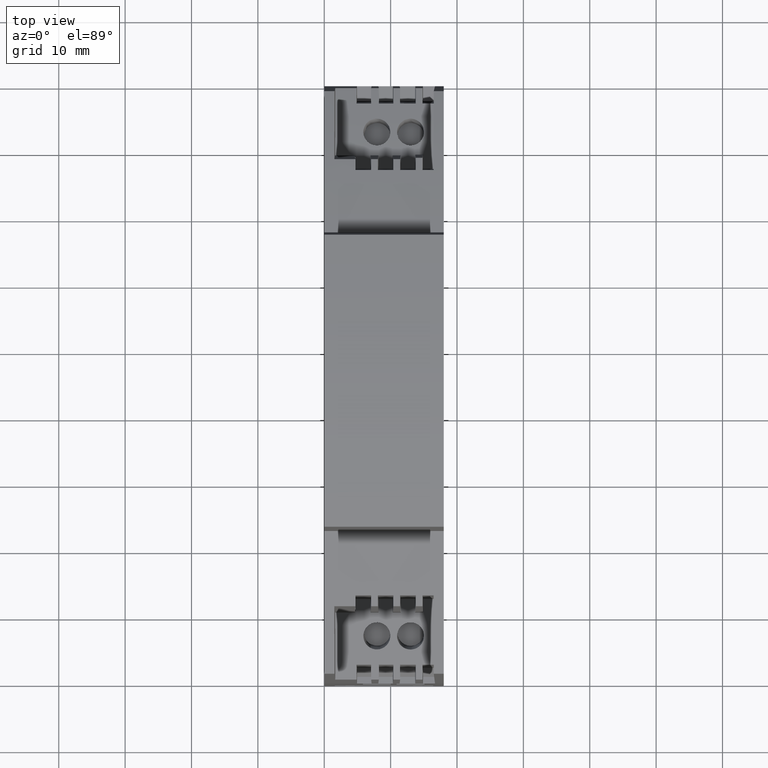
[diagram: clean part render]
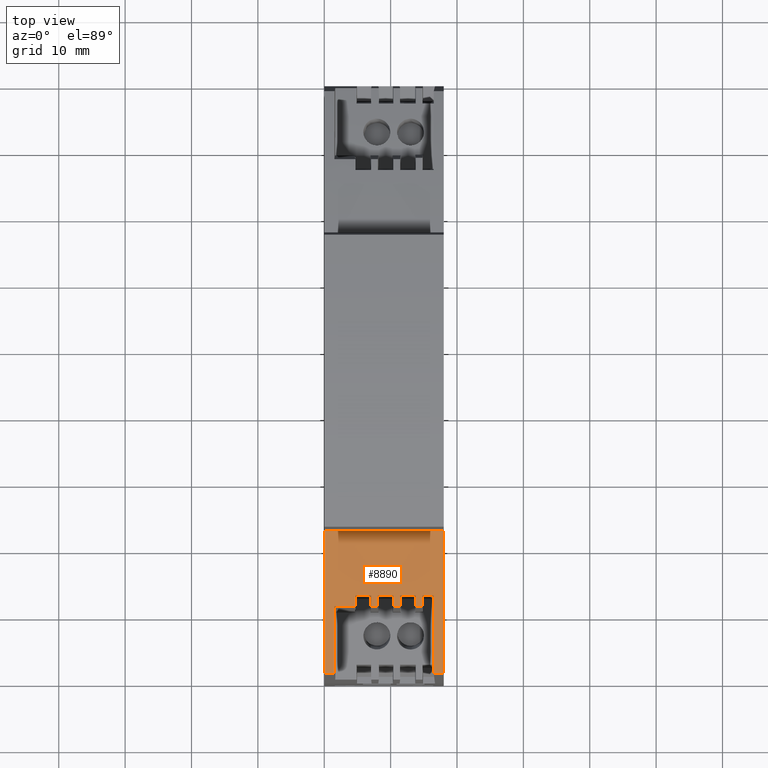
[diagram: same view with one face highlighted and labeled with its STEP entity id]
A machine part, top view. The second image highlights one B-rep face of the part: STEP entity #8890.
In plain terms, the highlighted cylindrical surface (partial cylindrical patch) has radius 129.979 mm, axis along (1, 0, 0).
Its self-contained STEP definition (entity closure, byte-faithful):
#1570=CARTESIAN_POINT('',(22.3788919526176,50.0000534366263,-9.));
#1580=DIRECTION('',(0.,0.,-1.));
#1590=VECTOR('',#1580,1.);
#1600=LINE('',#1570,#1590);
#1610=CARTESIAN_POINT('',(22.3788919526176,50.0000534366263,9.));
#1620=VERTEX_POINT('',#1610);
#1630=CARTESIAN_POINT('',(22.3788919526176,50.0000534366263,-9.));
#1640=VERTEX_POINT('',#1630);
#1650=EDGE_CURVE('',#1620,#1640,#1600,.T.);
#4760=CARTESIAN_POINT('',(32.1533225508675,47.906823677328,
-4.77993290453029));
#4770=VERTEX_POINT('',#4760);
#4800=CARTESIAN_POINT('',(0.0678739772899917,-78.049936182583,
-3.90057454831751));
#4810=DIRECTION('',(0.,-0.00698126029796196,-0.999975630705395));
#4820=DIRECTION('',(5.87232484377983E-13,-0.999975630705395,
0.00698126029796196));
#4830=AXIS2_PLACEMENT_3D('',#4800,#4810,#4820);
#4840=ELLIPSE('',#4830,129.982325001271,129.9791574237);
#4850=CARTESIAN_POINT('',(33.7865868463471,47.4794618364829,
-4.77694930756978));
#4860=VERTEX_POINT('',#4850);
#4870=EDGE_CURVE('',#4770,#4860,#4840,.T.);
#6380=CARTESIAN_POINT('',(0.0678739772899988,-78.049936182583,-9.));
#6390=DIRECTION('',(0.,0.,-1.));
#6400=DIRECTION('',(-0.173645167147608,0.984808283843246,0.));
#6410=AXIS2_PLACEMENT_3D('',#6380,#6390,#6400);
#6420=CYLINDRICAL_SURFACE('',#6410,129.9791574237);
#6430=CARTESIAN_POINT('',(0.0678739772899917,-78.049936182583,
-8.56804460210177));
#6440=DIRECTION('',(-1.76127537504895E-14,0.00872653549841275,
-0.999961923064171));
#6450=DIRECTION('',(-1.64242852715812E-12,0.999961923064171,
0.00872653549841275));
#6460=AXIS2_PLACEMENT_3D('',#6430,#6440,#6450);
#6470=ELLIPSE('',#6460,129.984106820194,129.9791574237);
#6480=CARTESIAN_POINT('',(32.153217548531,47.9068504249294,
-7.46883637802487));
#6490=VERTEX_POINT('',#6480);
#6500=CARTESIAN_POINT('',(43.8952236161742,44.3173175587917,
-7.50016175677859));
#6510=VERTEX_POINT('',#6500);
#6520=EDGE_CURVE('',#6490,#6510,#6470,.T.);
#6530=ORIENTED_EDGE('',*,*,#6520,.T.);
#6540=CARTESIAN_POINT('',(32.2,45.7958963043397,-5.80730438806806));
#6550=DIRECTION('',(-0.999751787330191,-0.0222786790074192,
-0.000155537047573668));
#6560=DIRECTION('',(0.0222792219363421,-0.999727424084353,
-0.00697952746070477));
#6570=AXIS2_PLACEMENT_3D('',#6540,#6550,#6560);
#6580=PLANE('',#6570);
#6590=CARTESIAN_POINT('',(32.1532175485309,47.9068504249294,
-7.4688363779665));
#6600=CARTESIAN_POINT('',(32.1531956922292,47.9068559924496,
-7.32914721665293));
#6610=CARTESIAN_POINT('',(32.1531738359276,47.9068615599636,
-7.18945805534681));
#6620=CARTESIAN_POINT('',(32.1531519796262,47.9068671274716,
-7.04976889403632));
#6630=CARTESIAN_POINT('',(32.1531301233247,47.9068726949796,
-6.91007973272342));
#6640=CARTESIAN_POINT('',(32.1531082670234,47.9068782624815,
-6.77039057141621));
#6650=CARTESIAN_POINT('',(32.1530864107222,47.9068838299773,
-6.6307014101062));
#6660=CARTESIAN_POINT('',(32.153064554421,47.9068893974731,
-6.49101224879592));
#6670=CARTESIAN_POINT('',(32.1530426981199,47.9068949649628,
-6.35132308748927));
#6680=CARTESIAN_POINT('',(32.153020841819,47.9069005324465,
-6.21163392617596));
#6690=CARTESIAN_POINT('',(32.1529989855181,47.9069060999301,
-6.07194476486596));
#6700=CARTESIAN_POINT('',(32.1529771292173,47.9069116674076,
-5.93225560355899));
#6710=CARTESIAN_POINT('',(32.1529552729167,47.906917234879,
-5.79256644224595));
#6720=B_SPLINE_CURVE_WITH_KNOTS('',3,(#6590,#6600,#6610,#6620,#6630,
#6640,#6650,#6660,#6670,#6680,#6690,#6700,#6710),.UNSPECIFIED.,.F.,.F.,(
4,3,3,3,4),(0.,0.419067489392611,0.838134978785163,1.25720246817783,
1.67626995757026),.UNSPECIFIED.);
#6730=SURFACE_CURVE('',#6720,(#6420,#6580),.CURVE_3D.);
#6740=CARTESIAN_POINT('',(32.1529552729166,47.906917234879,
-5.79256644230418));
#6750=VERTEX_POINT('',#6740);
#6760=EDGE_CURVE('',#6490,#6750,#6730,.T.);
#6770=ORIENTED_EDGE('',*,*,#6760,.F.);
#6780=CARTESIAN_POINT('',(0.0678739772899917,-78.049936182583,
-6.67192545168249));
#6790=DIRECTION('',(0.,0.00698126029796196,-0.999975630705395));
#6800=DIRECTION('',(-5.87232484377983E-13,0.999975630705395,
0.00698126029796196));
#6810=AXIS2_PLACEMENT_3D('',#6780,#6790,#6800);
#6820=ELLIPSE('',#6810,129.982325001271,129.9791574237);
#6830=CARTESIAN_POINT('',(33.7865868463471,47.4794618364829,
-5.79555069243022));
#6840=VERTEX_POINT('',#6830);
#6850=EDGE_CURVE('',#6750,#6840,#6820,.T.);
#6860=ORIENTED_EDGE('',*,*,#6850,.F.);
#6870=CARTESIAN_POINT('',(33.7865868463471,47.4794618364829,-9.));
#6880=DIRECTION('',(0.,0.,-1.));
#6890=VECTOR('',#6880,1.);
#6900=LINE('',#6870,#6890);
#6910=EDGE_CURVE('',#4860,#6840,#6900,.T.);
#6920=ORIENTED_EDGE('',*,*,#6910,.T.);
#6930=ORIENTED_EDGE('',*,*,#4870,.T.);
#6940=CARTESIAN_POINT('',(32.2,45.7958963043397,-2.44730438806806));
#6950=DIRECTION('',(-0.999751787330191,-0.022278679007417,
-0.000155537047573654));
#6960=DIRECTION('',(0.02227922193634,-0.999727424084354,
-0.00697952746070478));
#6970=AXIS2_PLACEMENT_3D('',#6940,#6950,#6960);
#6980=PLANE('',#6970);
#6990=CARTESIAN_POINT('',(32.1533225508674,47.9068236773281,
-4.77993290412726));
#7000=CARTESIAN_POINT('',(32.1532919443705,47.9068314738385,
-4.58431903224228));
#7010=CARTESIAN_POINT('',(32.1532613378738,47.9068392703369,
-4.38870516035612));
#7020=CARTESIAN_POINT('',(32.1532307313773,47.9068470668234,
-4.19309128847058));
#7030=CARTESIAN_POINT('',(32.1532001248809,47.9068548633098,
-3.99747741658432));
#7040=CARTESIAN_POINT('',(32.1531695183847,47.9068626597844,
-3.80186354469953));
#7050=CARTESIAN_POINT('',(32.1531389118888,47.9068704562469,
-3.60624967281378));
#7060=CARTESIAN_POINT('',(32.1531083053929,47.9068782527095,
-3.41063580092769));
#7070=CARTESIAN_POINT('',(32.1530776988973,47.9068860491602,
-3.21502192904273));
#7080=CARTESIAN_POINT('',(32.1530470924019,47.9068938455988,
-3.0194080571571));
#7090=CARTESIAN_POINT('',(32.1530164859065,47.9069016420375,
-2.82379418527145));
#7100=CARTESIAN_POINT('',(32.1529858794114,47.9069094384643,
-2.62818031338537));
#7110=CARTESIAN_POINT('',(32.1529552729166,47.906917234879,
-2.43256644150008));
#7120=B_SPLINE_CURVE_WITH_KNOTS('',3,(#6990,#7000,#7010,#7020,#7030,
#7040,#7050,#7060,#7070,#7080,#7090,#7100,#7110),.UNSPECIFIED.,.F.,.F.,(
4,3,3,3,4),(0.,0.586841623306008,1.17368324661213,1.76052486991813,
2.34736649322447),.UNSPECIFIED.);
#7130=SURFACE_CURVE('',#7120,(#6420,#6980),.CURVE_3D.);
#7140=CARTESIAN_POINT('',(32.1529552729167,47.906917234879,
-2.43256644230418));
#7150=VERTEX_POINT('',#7140);
#7160=EDGE_CURVE('',#4770,#7150,#7130,.T.);
#7170=ORIENTED_EDGE('',*,*,#7160,.F.);
#7180=CARTESIAN_POINT('',(0.0678739772899917,-78.049936182583,
-3.31192545168249));
#7190=DIRECTION('',(-5.87747175411144E-39,0.00698126029796196,
-0.999975630705395));
#7200=DIRECTION('',(5.87232477596368E-13,-0.999975630705395,
-0.00698126029796197));
#7210=AXIS2_PLACEMENT_3D('',#7180,#7190,#7200);
#7220=ELLIPSE('',#7210,129.982325001271,129.9791574237);
#7230=CARTESIAN_POINT('',(33.7911852592976,47.4782265569067,
-2.43555931644865));
#7240=VERTEX_POINT('',#7230);
#7250=EDGE_CURVE('',#7150,#7240,#7220,.T.);
#7260=ORIENTED_EDGE('',*,*,#7250,.F.);
#7270=CARTESIAN_POINT('',(33.7756312261384,47.6885075232064,
7.47982744420548));
#7280=DIRECTION('',(-0.998629638904394,-0.0523319761909752,
-0.00045669423743222));
#7290=DIRECTION('',(0.0523339689081509,-0.998591614147717,
-0.00871457699366722));
#7300=AXIS2_PLACEMENT_3D('',#7270,#7280,#7290);
#7310=PLANE('',#7300);
#7320=CARTESIAN_POINT('',(33.7911852592976,47.4782265569067,
-2.43555931644946));
#7330=CARTESIAN_POINT('',(33.7911458853763,47.4782371347641,
-2.35067450422279));
#7340=CARTESIAN_POINT('',(33.7911065114561,47.4782477126013,
-2.26578969199627));
#7350=CARTESIAN_POINT('',(33.791067137537,47.4782582904184,
-2.18090487976929));
#7360=CARTESIAN_POINT('',(33.7910277636178,47.4782688682355,
-2.09602006754229));
#7370=CARTESIAN_POINT('',(33.7909883896997,47.4782794460324,
-2.01113525531553));
#7380=CARTESIAN_POINT('',(33.7909490157827,47.4782900238092,
-1.92625044308901));
#7390=CARTESIAN_POINT('',(33.7909096418657,47.478300601586,
-1.8413656308621));
#7400=CARTESIAN_POINT('',(33.7908702679497,47.4783111793427,
-1.75648081863526));
#7410=CARTESIAN_POINT('',(33.7908308940348,47.4783217570792,
-1.67159600640849));
#7420=CARTESIAN_POINT('',(33.7907915201198,47.4783323348157,
-1.58671119418178));
#7430=CARTESIAN_POINT('',(33.790752146206,47.4783429125321,
-1.50182638195478));
#7440=CARTESIAN_POINT('',(33.7907127722931,47.4783534902283,
-1.4169415697281));
#7450=B_SPLINE_CURVE_WITH_KNOTS('',3,(#7320,#7330,#7340,#7350,#7360,
#7370,#7380,#7390,#7400,#7410,#7420,#7430,#7440),.UNSPECIFIED.,.F.,.F.,(
4,3,3,3,4),(0.,0.254654466052847,0.509308932105788,0.76396339815894,
1.01861786421196),.UNSPECIFIED.);
#7460=SURFACE_CURVE('',#7450,(#6420,#7310),.CURVE_3D.);
#7470=CARTESIAN_POINT('',(33.7907127722932,47.4783534902283,
-1.41694156972751));
#7480=VERTEX_POINT('',#7470);
#7490=EDGE_CURVE('',#7240,#7480,#7460,.T.);
#7500=ORIENTED_EDGE('',*,*,#7490,.F.);
#7510=CARTESIAN_POINT('',(0.0678739772899917,-78.049936182583,
-0.540574548317514));
#7520=DIRECTION('',(0.,-0.00698126029796196,-0.999975630705395));
#7530=DIRECTION('',(5.87232484377983E-13,-0.999975630705395,
0.00698126029796196));
#7540=AXIS2_PLACEMENT_3D('',#7510,#7520,#7530);
#7550=ELLIPSE('',#7540,129.982325001271,129.9791574237);
#7560=CARTESIAN_POINT('',(32.1533225508675,47.906823677328,
-1.41993290453029));
#7570=VERTEX_POINT('',#7560);
#7580=EDGE_CURVE('',#7570,#7480,#7550,.T.);
#7590=ORIENTED_EDGE('',*,*,#7580,.T.);
#7600=CARTESIAN_POINT('',(32.2,45.7958963043397,0.912695611931937));
#7610=DIRECTION('',(-0.999751787330191,-0.0222786790074192,
-0.000155537047573669));
#7620=DIRECTION('',(0.0222792219363421,-0.999727424084353,
-0.00697952746070477));
#7630=AXIS2_PLACEMENT_3D('',#7600,#7610,#7620);
#7640=PLANE('',#7630);
#7650=CARTESIAN_POINT('',(32.1529552729165,47.9069172348791,
0.92743355850347));
#7660=CARTESIAN_POINT('',(32.1529858794114,47.9069094384643,
0.731819686618598));
#7670=CARTESIAN_POINT('',(32.1530164859065,47.9069016420375,
0.536205814728384));
#7680=CARTESIAN_POINT('',(32.1530470924018,47.9068938455988,
0.340591942845109));
#7690=CARTESIAN_POINT('',(32.1530776988972,47.9068860491602,
0.144978070958847));
#7700=CARTESIAN_POINT('',(32.1531083053929,47.9068782527095,
-0.0506358009243039));
#7710=CARTESIAN_POINT('',(32.1531389118888,47.9068704562469,
-0.246249672812558));
#7720=CARTESIAN_POINT('',(32.1531695183847,47.9068626597844,
-0.441863544696176));
#7730=CARTESIAN_POINT('',(32.1532001248808,47.9068548633098,
-0.637477416585952));
#7740=CARTESIAN_POINT('',(32.1532307313773,47.9068470668234,
-0.833091288471259));
#7750=CARTESIAN_POINT('',(32.1532613378737,47.9068392703369,
-1.0287051603568));
#7760=CARTESIAN_POINT('',(32.1532919443704,47.9068314738385,
-1.22431903224209));
#7770=CARTESIAN_POINT('',(32.1533225508674,47.9068236773281,
-1.4199329041276));
#7780=B_SPLINE_CURVE_WITH_KNOTS('',3,(#7650,#7660,#7670,#7680,#7690,
#7700,#7710,#7720,#7730,#7740,#7750,#7760,#7770),.UNSPECIFIED.,.F.,.F.,(
4,3,3,3,4),(0.,0.586841623307679,1.17368324661467,1.76052486992269,
2.34736649322836),.UNSPECIFIED.);
#7790=SURFACE_CURVE('',#7780,(#7640,#6420),.CURVE_3D.);
#7800=CARTESIAN_POINT('',(32.1529552729167,47.906917234879,
0.927433557696123));
#7810=VERTEX_POINT('',#7800);
#7820=EDGE_CURVE('',#7810,#7570,#7790,.T.);
#7830=ORIENTED_EDGE('',*,*,#7820,.T.);
#7840=CARTESIAN_POINT('',(0.0678739772899917,-78.049936182583,
0.0480745483175138));
#7850=DIRECTION('',(0.,0.00698126029796196,-0.999975630705395));
#7860=DIRECTION('',(-5.87232484377983E-13,0.999975630705395,
0.00698126029796196));
#7870=AXIS2_PLACEMENT_3D('',#7840,#7850,#7860);
#7880=ELLIPSE('',#7870,129.982325001271,129.9791574237);
#7890=CARTESIAN_POINT('',(33.7865868463471,47.4794618364829,
0.924449307569777));
#7900=VERTEX_POINT('',#7890);
#7910=EDGE_CURVE('',#7810,#7900,#7880,.T.);
#7920=ORIENTED_EDGE('',*,*,#7910,.F.);
#7930=CARTESIAN_POINT('',(33.7865868463471,47.4794618364829,-9.));
#7940=DIRECTION('',(0.,0.,-1.));
#7950=VECTOR('',#7940,1.);
#7960=LINE('',#7930,#7950);
#7970=CARTESIAN_POINT('',(33.786586846347,47.4794618364829,
1.94305069243022));
#7980=VERTEX_POINT('',#7970);
#7990=EDGE_CURVE('',#7980,#7900,#7960,.T.);
#8000=ORIENTED_EDGE('',*,*,#7990,.T.);
#8010=CARTESIAN_POINT('',(0.0678739772899917,-78.049936182583,
2.81942545168249));
#8020=DIRECTION('',(-5.87747175411144E-39,0.00698126029796196,
0.999975630705395));
#8030=DIRECTION('',(-5.87232477596368E-13,0.999975630705395,
-0.00698126029796197));
#8040=AXIS2_PLACEMENT_3D('',#8010,#8020,#8030);
#8050=ELLIPSE('',#8040,129.982325001271,129.9791574237);
#8060=CARTESIAN_POINT('',(32.1529552729166,47.906917234879,
1.94006644230418));
#8070=VERTEX_POINT('',#8060);
#8080=EDGE_CURVE('',#7980,#8070,#8050,.T.);
#8090=ORIENTED_EDGE('',*,*,#8080,.F.);
#8100=CARTESIAN_POINT('',(32.4999999999997,32.334105399703,
2.04878694473868));
#8110=DIRECTION('',(-0.999751787330191,-0.0222786790074171,
0.000155537047573654));
#8120=DIRECTION('',(-0.02227922193634,0.999727424084354,
-0.00697952746070478));
#8130=AXIS2_PLACEMENT_3D('',#8100,#8110,#8120);
#8140=PLANE('',#8130);
#8150=CARTESIAN_POINT('',(32.1533225808146,47.9068236696995,
4.28762430389373));
#8160=CARTESIAN_POINT('',(32.153291971822,47.9068314668456,
4.09199448210195));
#8170=CARTESIAN_POINT('',(32.1532613628297,47.9068392639798,
3.89636466030417));
#8180=CARTESIAN_POINT('',(32.1532307538377,47.9068470611019,
3.70073483851101));
#8190=CARTESIAN_POINT('',(32.1532001448457,47.9068548582241,
3.50510501671754));
#8200=CARTESIAN_POINT('',(32.1531695358539,47.9068626553344,
3.30947519492247));
#8210=CARTESIAN_POINT('',(32.1531389268624,47.9068704524327,
3.11384537312822));
#8220=CARTESIAN_POINT('',(32.153108317871,47.906878249531,
2.91821555133283));
#8230=CARTESIAN_POINT('',(32.1530777088797,47.9068860466173,
2.72258572953839));
#8240=CARTESIAN_POINT('',(32.1530470998888,47.9068938436917,
2.52695590774486));
#8250=CARTESIAN_POINT('',(32.1530164908978,47.9069016407661,
2.33132608595054));
#8260=CARTESIAN_POINT('',(32.1529858819071,47.9069094378285,
2.13569626415545));
#8270=CARTESIAN_POINT('',(32.1529552729167,47.906917234879,
1.94006644236204));
#8280=B_SPLINE_CURVE_WITH_KNOTS('',3,(#8150,#8160,#8170,#8180,#8190,
#8200,#8210,#8220,#8230,#8240,#8250,#8260,#8270),.UNSPECIFIED.,.F.,.F.,(
4,3,3,3,4),(0.,0.586889473032669,1.1737789460654,1.76066841909871,
2.34755789213147),.UNSPECIFIED.);
#8290=SURFACE_CURVE('',#8280,(#8140,#6420),.CURVE_3D.);
#8300=CARTESIAN_POINT('',(32.1533225808146,47.9068236696995,
4.28762430383619));
#8310=VERTEX_POINT('',#8300);
#8320=EDGE_CURVE('',#8310,#8070,#8290,.T.);
#8330=ORIENTED_EDGE('',*,*,#8320,.T.);
#8340=CARTESIAN_POINT('',(0.0678739772899917,-78.049936182583,
5.1669826599957));
#8350=DIRECTION('',(-5.87747175411144E-39,0.00698126029796196,
0.999975630705395));
#8360=DIRECTION('',(-5.87232477596368E-13,0.999975630705395,
-0.00698126029796197));
#8370=AXIS2_PLACEMENT_3D('',#8340,#8350,#8360);
#8380=ELLIPSE('',#8370,129.982325001271,129.9791574237);
#8390=CARTESIAN_POINT('',(33.7865868463471,47.4794618364829,
4.29060790074343));
#8400=VERTEX_POINT('',#8390);
#8410=EDGE_CURVE('',#8400,#8310,#8380,.T.);
#8420=ORIENTED_EDGE('',*,*,#8410,.T.);
#8430=CARTESIAN_POINT('',(33.7865868463471,47.4794618364829,-9.));
#8440=DIRECTION('',(0.,0.,-1.));
#8450=VECTOR('',#8440,1.);
#8460=LINE('',#8430,#8450);
#8470=CARTESIAN_POINT('',(33.786586846347,47.4794618364829,
7.47800313013521));
#8480=VERTEX_POINT('',#8470);
#8490=EDGE_CURVE('',#8480,#8400,#8460,.T.);
#8500=ORIENTED_EDGE('',*,*,#8490,.T.);
#8510=CARTESIAN_POINT('',(0.0678739772899917,-78.049936182583,
6.382524669765));
#8520=DIRECTION('',(-1.76127537504895E-14,0.00872653549841275,
-0.999961923064171));
#8530=DIRECTION('',(-1.64242852715812E-12,0.999961923064171,
0.00872653549841275));
#8540=AXIS2_PLACEMENT_3D('',#8510,#8520,#8530);
#8550=ELLIPSE('',#8540,129.984106820194,129.9791574237);
#8560=CARTESIAN_POINT('',(43.8952236161742,44.3173175587917,
7.45040751508819));
#8570=VERTEX_POINT('',#8560);
#8580=EDGE_CURVE('',#8480,#8570,#8550,.T.);
#8590=ORIENTED_EDGE('',*,*,#8580,.F.);
#8600=CARTESIAN_POINT('',(43.8952236161742,44.3173175587917,-9.));
#8610=DIRECTION('',(0.,0.,-1.));
#8620=VECTOR('',#8610,1.);
#8630=LINE('',#8600,#8620);
#8640=CARTESIAN_POINT('',(43.8952236161742,44.3173175587917,9.));
#8650=VERTEX_POINT('',#8640);
#8660=EDGE_CURVE('',#8650,#8570,#8630,.T.);
#8670=ORIENTED_EDGE('',*,*,#8660,.T.);
#8680=CARTESIAN_POINT('',(0.0678739772899988,-78.049936182583,9.));
#8690=DIRECTION('',(0.,0.,-1.));
#8700=DIRECTION('',(-0.173645167147608,0.984808283843246,0.));
#8710=AXIS2_PLACEMENT_3D('',#8680,#8690,#8700);
#8720=CIRCLE('',#8710,129.9791574237);
#8730=EDGE_CURVE('',#1620,#8650,#8720,.T.);
#8740=ORIENTED_EDGE('',*,*,#8730,.T.);
#8750=ORIENTED_EDGE('',*,*,#1650,.F.);
#8760=CARTESIAN_POINT('',(0.0678739772899988,-78.049936182583,-9.));
#8770=DIRECTION('',(0.,0.,-1.));
#8780=DIRECTION('',(-0.173645167147608,0.984808283843246,0.));
#8790=AXIS2_PLACEMENT_3D('',#8760,#8770,#8780);
#8800=CIRCLE('',#8790,129.9791574237);
#8810=CARTESIAN_POINT('',(43.8952236161742,44.3173175587917,-9.));
#8820=VERTEX_POINT('',#8810);
#8830=EDGE_CURVE('',#1640,#8820,#8800,.T.);
#8840=ORIENTED_EDGE('',*,*,#8830,.F.);
#8850=EDGE_CURVE('',#6510,#8820,#8630,.T.);
#8860=ORIENTED_EDGE('',*,*,#8850,.T.);
#8870=EDGE_LOOP('',(#8860,#8840,#8750,#8740,#8670,#8590,#8500,#8420,
#8330,#8090,#8000,#7920,#7830,#7590,#7500,#7260,#7170,#6930,#6920,#6860,
#6770,#6530));
#8880=FACE_OUTER_BOUND('',#8870,.T.);
#8890=ADVANCED_FACE('',(#8880),#6420,.T.);